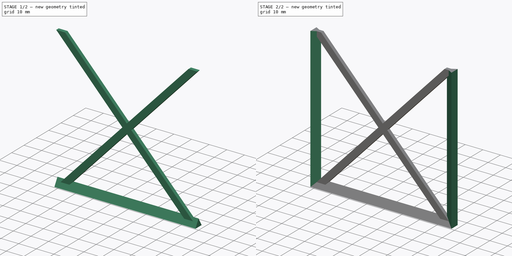
[diagram: build sequence overview — one tinted view per stage of 2, left to right]
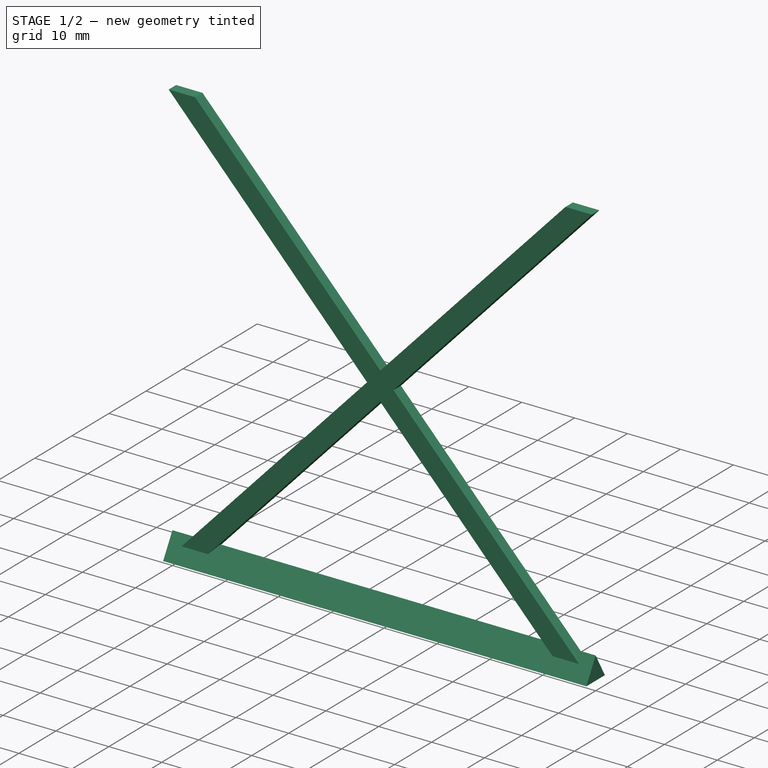
[diagram: stage 1 of 2 — iso view after this stage's code; geometry added in this stage tinted green]
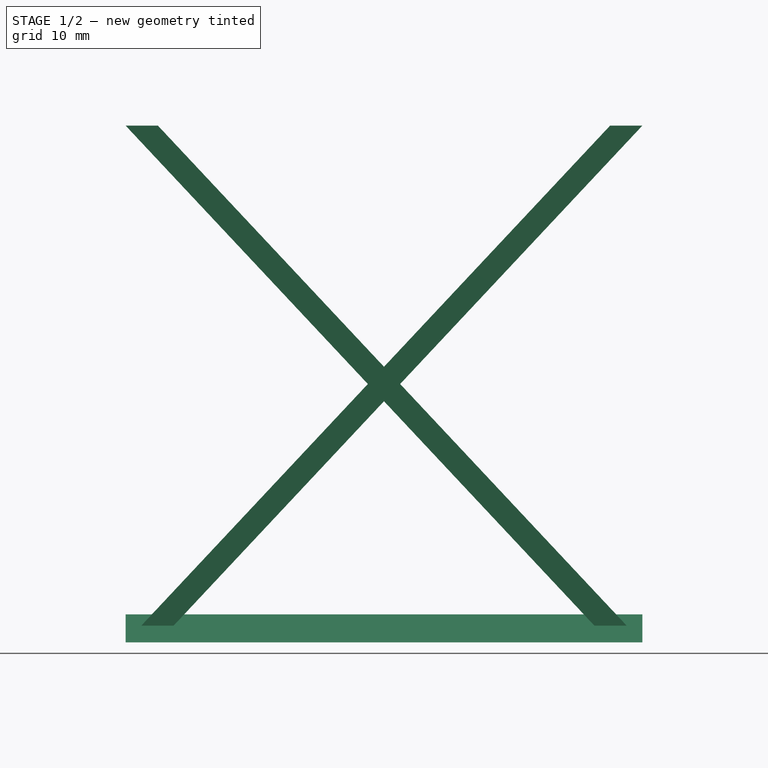
[diagram: stage 1 of 2 — front view after this stage's code; geometry added in this stage tinted green]
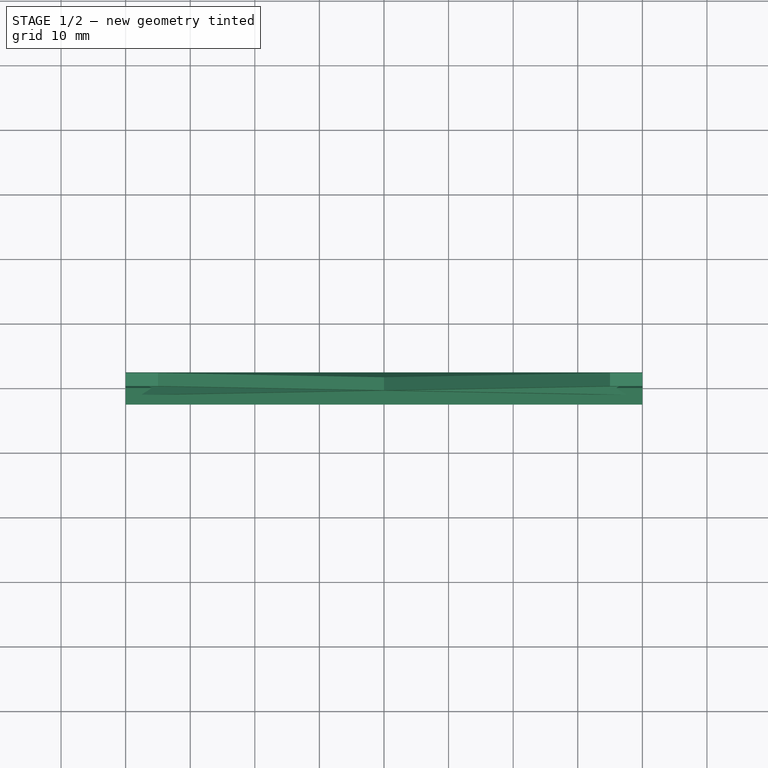
[diagram: stage 1 of 2 — top view after this stage's code; geometry added in this stage tinted green]
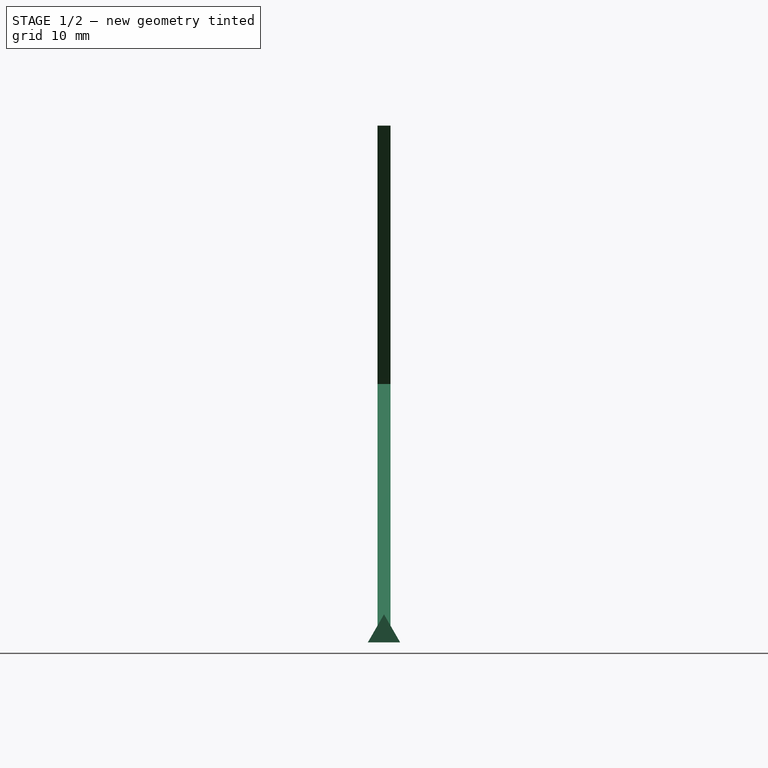
[diagram: stage 1 of 2 — right view after this stage's code; geometry added in this stage tinted green]
FCSTD DOCUMENT  (FreeCAD 0.18R14014 (Git))
Label: VerticalSquare
License: All rights reserved
LicenseURL: http://en.wikipedia.org/wiki/All_rights_reserved
objects: Sketcher::SketchObject×3, PartDesign::Pad×3, PartDesign::Body×1, Part::FeaturePython×1, App::Part×1
note: 11 computed .brp shape members not serialized (recipe doc carries the construction recipe); baked Part::Feature solids carry a one-line shape summary decoded from their .brp

FEATURE [Sketcher::SketchObject] Sketch  label="VS_FrameSketch1"
  MapMode = 5
  Placement = pos=(0,0,0) rot=(1,0,0;1.5708rad)
  Support = -> [XZ_Plane001]
  sketch-geometry (17):
    g0: LineSegment [constr] StartX=40 StartY=0 StartZ=0 EndX=40 EndY=80 EndZ=0
    g1: LineSegment [constr] StartX=40 StartY=80 StartZ=0 EndX=-40 EndY=80 EndZ=0
    g2: LineSegment [constr] StartX=-40 StartY=80 StartZ=0 EndX=-40 EndY=0 EndZ=0
    g3: LineSegment [constr] StartX=-40 StartY=0 StartZ=0 EndX=40 EndY=0 EndZ=0
    g4: Circle [constr] CenterX=0 CenterY=40 CenterZ=0 NormalX=0 NormalY=0 NormalZ=1 AngleXU=0 Radius=56.5685
    g5: LineSegment StartX=-40 StartY=0 StartZ=0 EndX=-2.5 EndY=40 EndZ=0
    g6: LineSegment StartX=40 StartY=80 StartZ=0 EndX=2.5 EndY=40 EndZ=0
    g7: LineSegment StartX=40 StartY=0 StartZ=0 EndX=2.5 EndY=40 EndZ=0
    g8: LineSegment StartX=35 StartY=0 StartZ=0 EndX=0 EndY=37.3333 EndZ=0
    g9: LineSegment StartX=-40 StartY=80 StartZ=0 EndX=-35 EndY=80 EndZ=0
    g10: LineSegment StartX=35 StartY=80 StartZ=0 EndX=40 EndY=80 EndZ=0
    g11: LineSegment StartX=-40 StartY=0 StartZ=0 EndX=-35 EndY=0 EndZ=0
    g12: LineSegment StartX=35 StartY=0 StartZ=0 EndX=40 EndY=0 EndZ=0
    g13: LineSegment StartX=0 StartY=42.6667 StartZ=0 EndX=35 EndY=80 EndZ=0
    g14: LineSegment StartX=0 StartY=42.6667 StartZ=0 EndX=-35 EndY=80 EndZ=0
    g15: LineSegment StartX=0 StartY=37.3333 StartZ=0 EndX=-35 EndY=0 EndZ=0
    g16: LineSegment StartX=-2.5 StartY=40 StartZ=0 EndX=-40 EndY=80 EndZ=0
  constraints (43):
    c: Coincident(g0,g1)
    c: Coincident(g1,g2)
    c: Coincident(g2,g3)
    c: Coincident(g3,g0)
    c: Equal(g0,g1)
    c: Equal(g0,g2)
    c: Equal(g0,g3)
    c: PointOnObject(g0,g4)
    c: PointOnObject(g1,g4)
    c: PointOnObject(g2,g4)
    c: PointOnObject(g3,g4)
    c: PointOnObject(g4,g-2)
    c: PointOnObject(g0,g-1)
    c: PointOnObject(g2,g-1)
    c: Distance(g1) = 80
    c: Coincident(g5,g2)
    c: PointOnObject(g13,g1)
    c: Coincident(g6,g0)
    c: PointOnObject(g15,g3)
    c: Coincident(g7,g0)
    c: PointOnObject(g14,g1)
    c: PointOnObject(g8,g3)
    c: Coincident(g16,g1)
    c: Coincident(g9,g16)
    c: Coincident(g9,g14)
    c: Coincident(g10,g13)
    c: Coincident(g10,g6)
    c: Coincident(g11,g5)
    c: Coincident(g11,g15)
    c: Coincident(g12,g8)
    c: Coincident(g12,g7)
    c: Equal(g10,g9)
    c: Equal(g9,g11)
    c: Equal(g11,g12)
    c: Tangent(g5,g13)
    c: Coincident(g14,g13)
    c: Tangent(g7,g14)
    c: Coincident(g6,g7)
    c: Tangent(g6,g15)
    c: Coincident(g8,g15)
    c: Coincident(g16,g5)
    c: Tangent(g8,g16)
    c: Distance(g9) = 5
FEATURE [Sketcher::SketchObject] Sketch001  label="VS_FrameSketch2"
  MapMode = 5
  Placement = pos=(0,0,0) rot=(0.57735,0.57735,0.57735;2.0944rad)
  Support = -> [YZ_Plane001]
  sketch-geometry (4):
    g0: LineSegment StartX=2.5 StartY=0 StartZ=0 EndX=0 EndY=4.33013 EndZ=0
    g1: LineSegment StartX=0 StartY=4.33013 StartZ=0 EndX=-2.5 EndY=0 EndZ=0
    g2: LineSegment StartX=-2.5 StartY=0 StartZ=0 EndX=2.5 EndY=0 EndZ=0
    g3: Circle [constr] CenterX=0 CenterY=1.44338 CenterZ=0 NormalX=0 NormalY=0 NormalZ=1 AngleXU=0 Radius=2.88675
  constraints (12):
    c: Coincident(g0,g1)
    c: Coincident(g1,g2)
    c: Coincident(g2,g0)
    c: Equal(g0,g1)
    c: Equal(g0,g2)
    c: PointOnObject(g0,g3)
    c: PointOnObject(g1,g3)
    c: PointOnObject(g2,g3)
    c: PointOnObject(g3,g-2)
    c: PointOnObject(g0,g-1)
    c: PointOnObject(g1,g-1)
    c: Distance(g2) = 5
FEATURE [Sketcher::SketchObject] Sketch002  label="VS_FrameSketch3"
  ExternalGeometry = -> [Sketch]
  MapMode = 5
  Support = -> [XY_Plane001]
  sketch-geometry (8):
    g0: LineSegment StartX=-35.6699 StartY=0 StartZ=0 EndX=-40 EndY=2.5 EndZ=0
    g1: LineSegment StartX=-40 StartY=2.5 StartZ=0 EndX=-40 EndY=-2.5 EndZ=0
    g2: LineSegment StartX=-40 StartY=-2.5 StartZ=0 EndX=-35.6699 EndY=0 EndZ=0
    g3: Circle [constr] CenterX=-38.5566 CenterY=0 CenterZ=0 NormalX=0 NormalY=0 NormalZ=1 AngleXU=0 Radius=2.88675
    g4: LineSegment StartX=35.6699 StartY=0 StartZ=0 EndX=40 EndY=-2.5 EndZ=0
    g5: LineSegment StartX=40 StartY=-2.5 StartZ=0 EndX=40 EndY=2.5 EndZ=0
    g6: LineSegment StartX=40 StartY=2.5 StartZ=0 EndX=35.6699 EndY=0 EndZ=0
    g7: Circle [constr] CenterX=38.5566 CenterY=0 CenterZ=0 NormalX=0 NormalY=0 NormalZ=1 AngleXU=0 Radius=2.88675
  constraints (24):
    c: Coincident(g0,g1)
    c: Coincident(g1,g2)
    c: Coincident(g2,g0)
    c: Equal(g0,g1)
    c: Equal(g0,g2)
    c: PointOnObject(g0,g3)
    c: PointOnObject(g1,g3)
    c: PointOnObject(g2,g3)
    c: PointOnObject(g3,g-1)
    c: PointOnObject(g0,g-1)
    c: PointOnObject(g-3,g1)
    c: Distance(g1) = 5
    c: Coincident(g4,g5)
    c: Coincident(g5,g6)
    c: Coincident(g6,g4)
    c: Equal(g4,g5)
    c: Equal(g4,g6)
    c: PointOnObject(g4,g7)
    c: PointOnObject(g5,g7)
    c: PointOnObject(g6,g7)
    c: PointOnObject(g7,g-1)
    c: PointOnObject(g6,g-1)
    c: PointOnObject(g-4,g5)
    c: Equal(g5,g1)
FEATURE [PartDesign::Pad] Pad  label="VS_FramePad1"
  Length = 2
  Length2 = 100
  Midplane = true
  Placement = pos=(0,0,0) rot=(1,0,0;1.5708rad)
  Profile = -> Sketch
  Type = 0
FEATURE [PartDesign::Pad] Pad001  label="VS_FramePad2"
  BaseFeature = -> Pad
  Length = 80
  Length2 = 100
  Midplane = true
  Placement = pos=(0,0,0) rot=(1,0,0;1.5708rad)
  Profile = -> Sketch001
  Type = 0
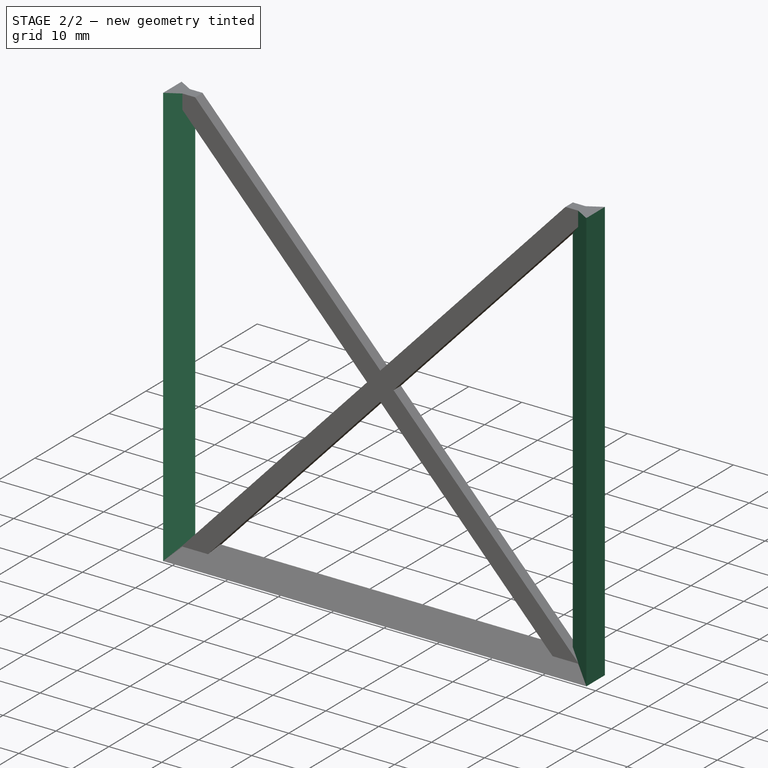
[diagram: stage 2 of 2 — iso view after this stage's code; geometry added in this stage tinted green]
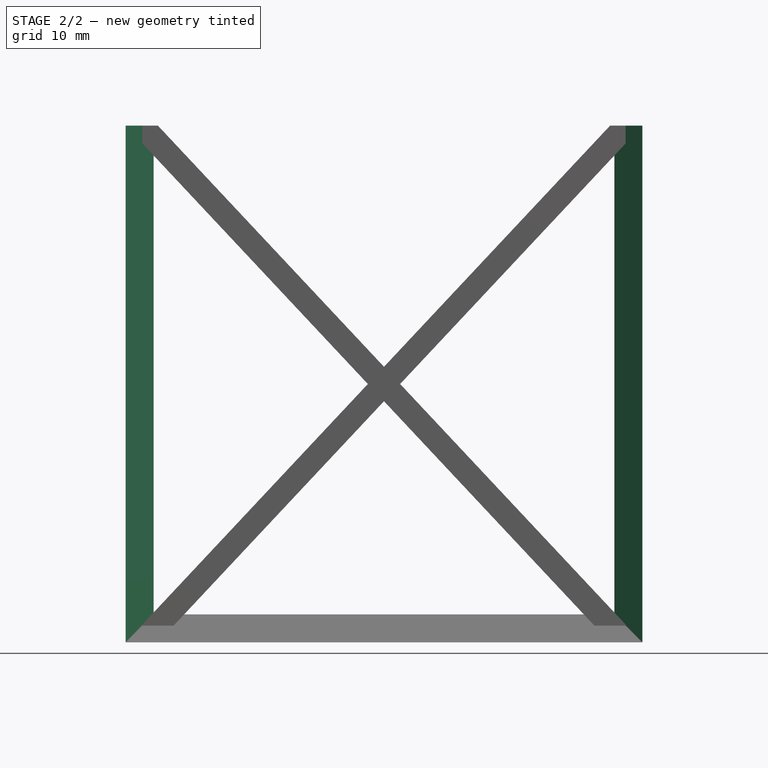
[diagram: stage 2 of 2 — front view after this stage's code; geometry added in this stage tinted green]
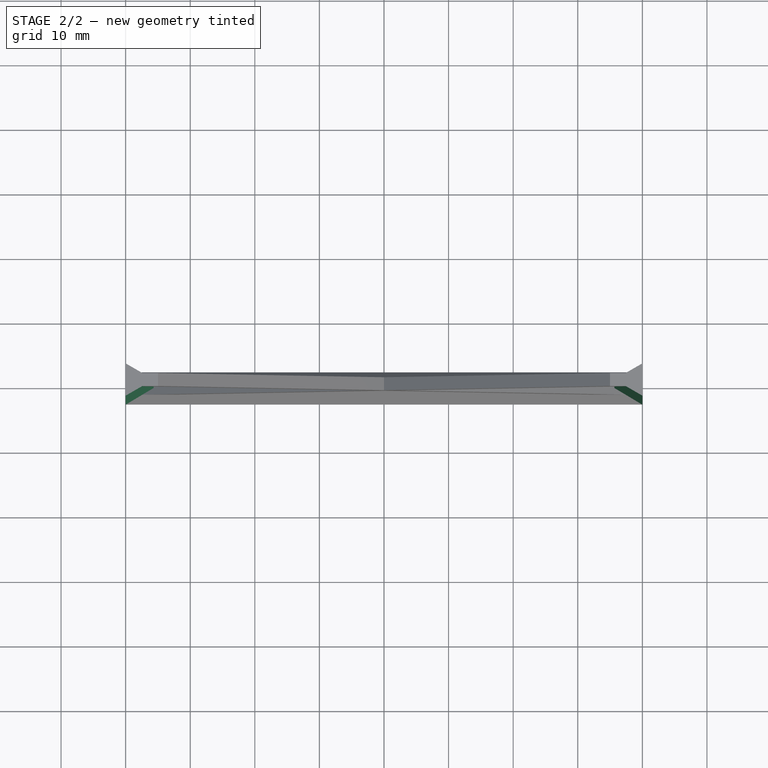
[diagram: stage 2 of 2 — top view after this stage's code; geometry added in this stage tinted green]
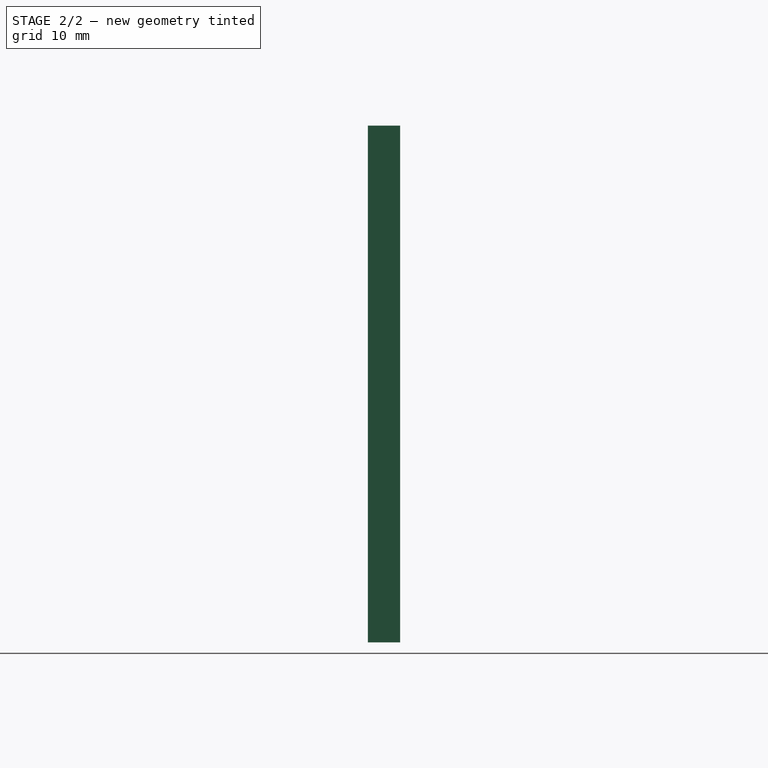
[diagram: stage 2 of 2 — right view after this stage's code; geometry added in this stage tinted green]
FEATURE [PartDesign::Pad] Pad002  label="VS_FramePad3"
  BaseFeature = -> Pad001
  Length = 80
  Length2 = 100
  Placement = pos=(0,0,0) rot=(1,0,0;1.5708rad)
  Profile = -> Sketch002
  Type = 0
FEATURE [PartDesign::Body] Body  label="VerticalSquareBody"
  Group = -> [Sketch,Sketch001,Sketch002,Pad,Pad001,Pad002]
  Origin = -> Origin001
  Tip = -> Pad002
FEATURE [Part::FeaturePython] refine  label="VerticalSquareBody_Refined"  # WARN: FeaturePython — macro-defined, semantics opaque (R4)
  Base = -> Body
FEATURE [App::Part] Part  label="VerticalSquarePart"
  Group = -> [Body,refine]
  License = CC BY 3.0
  LicenseURL = http://creativecommons.org/licenses/by/3.0/
  Origin = -> Origin
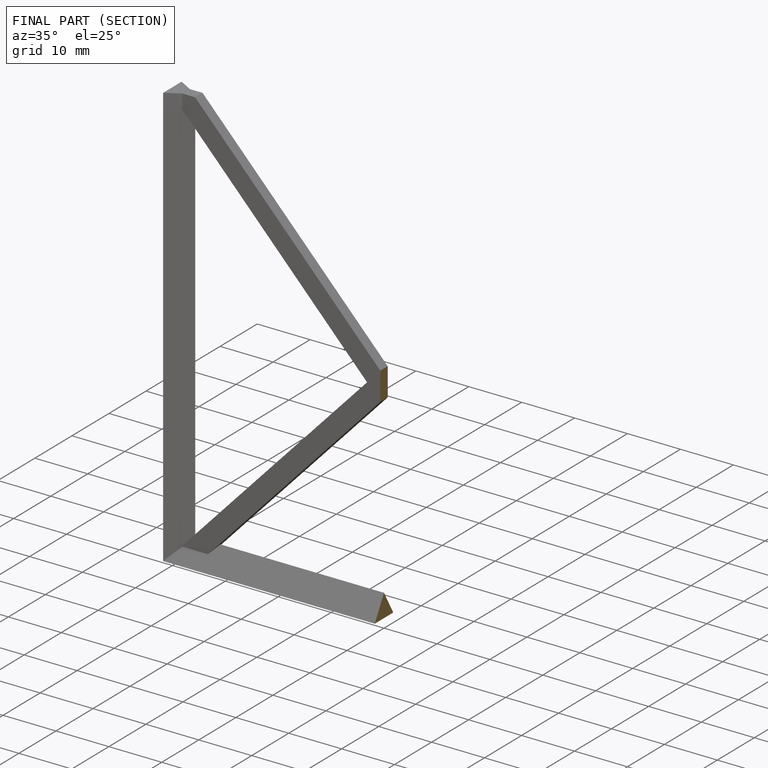
[diagram: finished part — half-section view (interior)]
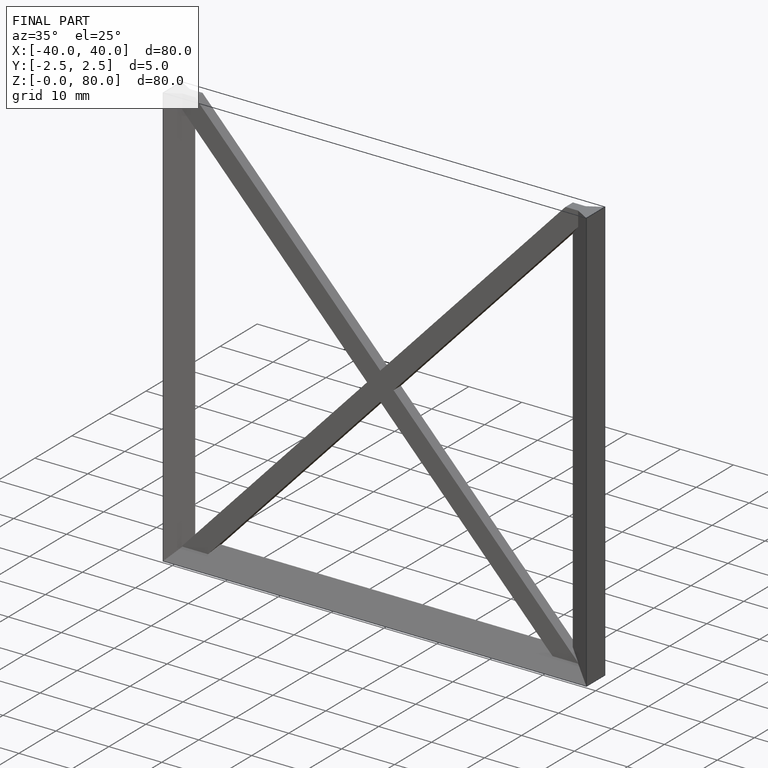
[diagram: finished part — iso view with bounding-box wireframe]
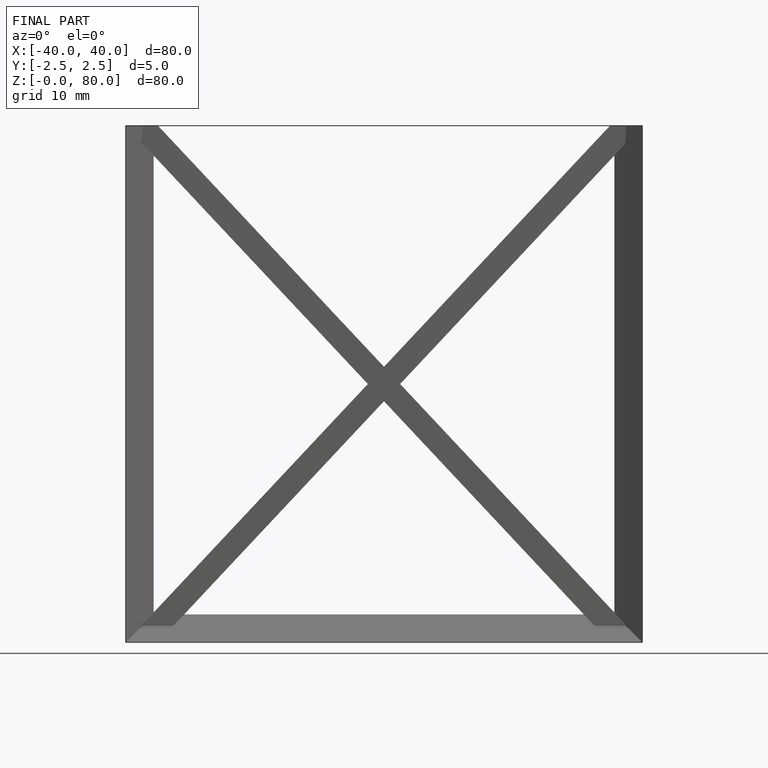
[diagram: finished part — front view with bounding-box wireframe]
